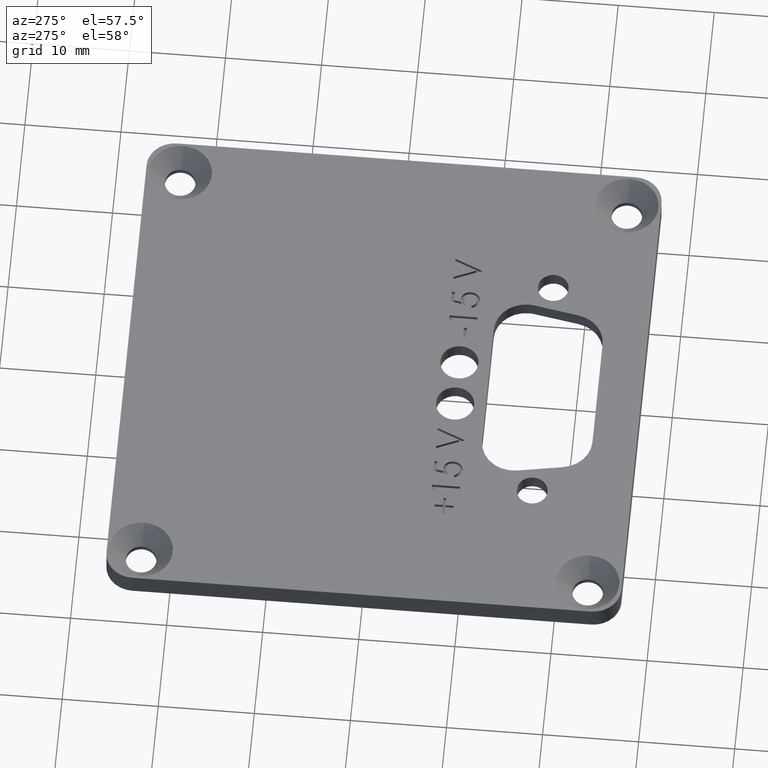
[diagram: clean part render]
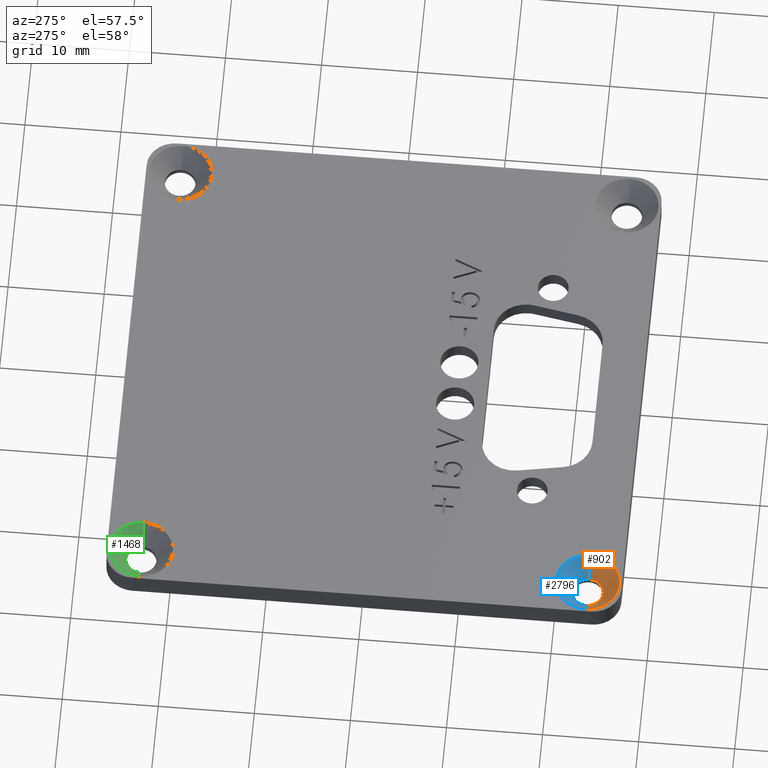
[diagram: same view with three faces highlighted in distinct colors, each labeled with its STEP entity id]
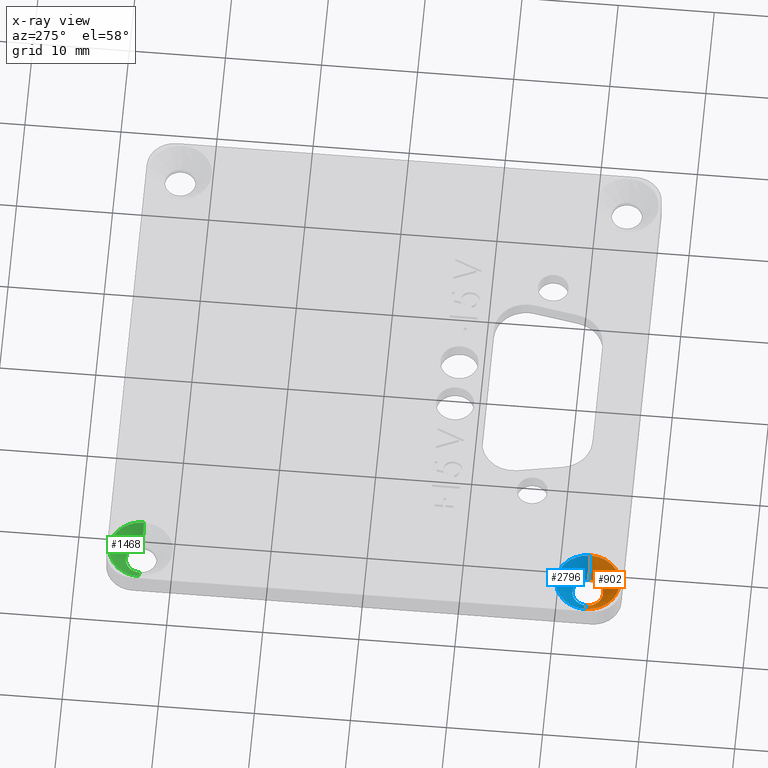
[diagram: x-ray of the same camera — body ghosted, the three highlighted faces saturated]
A machine part, auxiliary view with three faces highlighted in distinct colors.
The next image is the same camera in x-ray (body ghosted, the three faces saturated) — at least one of them is partly hidden behind the body in this view.
Their STEP definitions:

[orange] entity #902 — the highlighted conical surface has half-angle 41 deg.
#76 = EDGE_CURVE ( 'NONE', #2700, #6438, #6352, .T. ) ;
#322 = DIRECTION ( 'NONE',  ( 1.000000000000000000, 0.0000000000000000000, 0.0000000000000000000 ) ) ;
#371 = LINE ( 'NONE', #2933, #2832 ) ;
#525 = ORIENTED_EDGE ( 'NONE', *, *, #4671, .F. ) ;
#820 = EDGE_CURVE ( 'NONE', #2700, #1580, #6354, .T. ) ;
#894 = CARTESIAN_POINT ( 'NONE',  ( -1.045000000000000200, -0.9150000000000002600, 0.04921259842519685300 ) ) ;
#902 = ADVANCED_FACE ( 'NONE', ( #1443 ), #5883, .F. ) ;
#1054 = DIRECTION ( 'NONE',  ( -0.6560590289905072800, 8.034405899049453800E-017, 0.7547095802227720100 ) ) ;
#1059 = CIRCLE ( 'NONE', #1637, 0.1299999999999999800 ) ;
#1078 = VECTOR ( 'NONE', #1054, 39.37007874015748100 ) ;
#1443 = FACE_OUTER_BOUND ( 'NONE', #1845, .T. ) ;
#1580 = VERTEX_POINT ( 'NONE', #3117 ) ;
#1637 = AXIS2_PLACEMENT_3D ( 'NONE', #6267, #3282, #322 ) ;
#1845 = EDGE_LOOP ( 'NONE', ( #5826, #2280, #4849, #525 ) ) ;
#2008 = CARTESIAN_POINT ( 'NONE',  ( -0.9780000000000002000, -0.9150000000000002600, -0.02786208485861078900 ) ) ;
#2012 = DIRECTION ( 'NONE',  ( 0.0000000000000000000, 0.0000000000000000000, 1.000000000000000000 ) ) ;
#2280 = ORIENTED_EDGE ( 'NONE', *, *, #820, .T. ) ;
#2477 = CARTESIAN_POINT ( 'NONE',  ( -0.9150000000000002600, -0.9150000000000002600, -0.02786208485861078900 ) ) ;
#2680 = VERTEX_POINT ( 'NONE', #5497 ) ;
#2700 = VERTEX_POINT ( 'NONE', #2008 ) ;
#2832 = VECTOR ( 'NONE', #3441, 39.37007874015748100 ) ;
#2933 = CARTESIAN_POINT ( 'NONE',  ( -0.7850000000000002500, -0.9150000000000002600, 0.04921259842519685300 ) ) ;
#3117 = CARTESIAN_POINT ( 'NONE',  ( -1.045000000000000200, -0.9150000000000002600, 0.04921259842519685300 ) ) ;
#3267 = AXIS2_PLACEMENT_3D ( 'NONE', #2477, #2012, #4474 ) ;
#3282 = DIRECTION ( 'NONE',  ( 0.0000000000000000000, 0.0000000000000000000, 1.000000000000000000 ) ) ;
#3441 = DIRECTION ( 'NONE',  ( 0.6560590289905072800, 0.0000000000000000000, 0.7547095802227720100 ) ) ;
#4282 = DIRECTION ( 'NONE',  ( 1.000000000000000000, 0.0000000000000000000, 0.0000000000000000000 ) ) ;
#4292 = CARTESIAN_POINT ( 'NONE',  ( -0.9150000000000002600, -0.9150000000000002600, 0.04921259842519685300 ) ) ;
#4474 = DIRECTION ( 'NONE',  ( 1.000000000000000000, 0.0000000000000000000, 0.0000000000000000000 ) ) ;
#4671 = EDGE_CURVE ( 'NONE', #6438, #2680, #371, .T. ) ;
#4849 = ORIENTED_EDGE ( 'NONE', *, *, #4982, .T. ) ;
#4982 = EDGE_CURVE ( 'NONE', #1580, #2680, #1059, .T. ) ;
#5497 = CARTESIAN_POINT ( 'NONE',  ( -0.7850000000000002500, -0.9150000000000002600, 0.04921259842519685300 ) ) ;
#5826 = ORIENTED_EDGE ( 'NONE', *, *, #76, .F. ) ;
#5883 = CONICAL_SURFACE ( 'NONE', #6445, 0.1299999999999999800, 0.7155849933176751100 ) ;
#6186 = CARTESIAN_POINT ( 'NONE',  ( -0.8520000000000002000, -0.9150000000000002600, -0.02786208485861078900 ) ) ;
#6267 = CARTESIAN_POINT ( 'NONE',  ( -0.9150000000000002600, -0.9150000000000002600, 0.04921259842519685300 ) ) ;
#6271 = DIRECTION ( 'NONE',  ( 0.0000000000000000000, 0.0000000000000000000, 1.000000000000000000 ) ) ;
#6352 = CIRCLE ( 'NONE', #3267, 0.06299999999999998700 ) ;
#6354 = LINE ( 'NONE', #894, #1078 ) ;
#6438 = VERTEX_POINT ( 'NONE', #6186 ) ;
#6445 = AXIS2_PLACEMENT_3D ( 'NONE', #4292, #6271, #4282 ) ;

[blue] entity #2796 — the highlighted conical surface has half-angle 41 deg.
#98 = ORIENTED_EDGE ( 'NONE', *, *, #4671, .T. ) ;
#371 = LINE ( 'NONE', #2933, #2832 ) ;
#820 = EDGE_CURVE ( 'NONE', #2700, #1580, #6354, .T. ) ;
#894 = CARTESIAN_POINT ( 'NONE',  ( -1.045000000000000200, -0.9150000000000002600, 0.04921259842519685300 ) ) ;
#1054 = DIRECTION ( 'NONE',  ( -0.6560590289905072800, 8.034405899049453800E-017, 0.7547095802227720100 ) ) ;
#1078 = VECTOR ( 'NONE', #1054, 39.37007874015748100 ) ;
#1557 = EDGE_CURVE ( 'NONE', #6438, #2700, #5629, .T. ) ;
#1580 = VERTEX_POINT ( 'NONE', #3117 ) ;
#1718 = AXIS2_PLACEMENT_3D ( 'NONE', #2610, #6104, #3135 ) ;
#1952 = AXIS2_PLACEMENT_3D ( 'NONE', #1996, #3094, #3002 ) ;
#1996 = CARTESIAN_POINT ( 'NONE',  ( -0.9150000000000002600, -0.9150000000000002600, -0.02786208485861078900 ) ) ;
#1999 = ORIENTED_EDGE ( 'NONE', *, *, #5450, .T. ) ;
#2002 = AXIS2_PLACEMENT_3D ( 'NONE', #2950, #4288, #3393 ) ;
#2008 = CARTESIAN_POINT ( 'NONE',  ( -0.9780000000000002000, -0.9150000000000002600, -0.02786208485861078900 ) ) ;
#2467 = ORIENTED_EDGE ( 'NONE', *, *, #820, .F. ) ;
#2610 = CARTESIAN_POINT ( 'NONE',  ( -0.9150000000000002600, -0.9150000000000002600, 0.04921259842519685300 ) ) ;
#2680 = VERTEX_POINT ( 'NONE', #5497 ) ;
#2700 = VERTEX_POINT ( 'NONE', #2008 ) ;
#2796 = ADVANCED_FACE ( 'NONE', ( #3655 ), #4811, .F. ) ;
#2832 = VECTOR ( 'NONE', #3441, 39.37007874015748100 ) ;
#2933 = CARTESIAN_POINT ( 'NONE',  ( -0.7850000000000002500, -0.9150000000000002600, 0.04921259842519685300 ) ) ;
#2950 = CARTESIAN_POINT ( 'NONE',  ( -0.9150000000000002600, -0.9150000000000002600, 0.04921259842519685300 ) ) ;
#2979 = ORIENTED_EDGE ( 'NONE', *, *, #1557, .F. ) ;
#3002 = DIRECTION ( 'NONE',  ( 1.000000000000000000, 0.0000000000000000000, 0.0000000000000000000 ) ) ;
#3094 = DIRECTION ( 'NONE',  ( 0.0000000000000000000, 0.0000000000000000000, 1.000000000000000000 ) ) ;
#3117 = CARTESIAN_POINT ( 'NONE',  ( -1.045000000000000200, -0.9150000000000002600, 0.04921259842519685300 ) ) ;
#3135 = DIRECTION ( 'NONE',  ( 1.000000000000000000, 0.0000000000000000000, 0.0000000000000000000 ) ) ;
#3393 = DIRECTION ( 'NONE',  ( 1.000000000000000000, 0.0000000000000000000, 0.0000000000000000000 ) ) ;
#3441 = DIRECTION ( 'NONE',  ( 0.6560590289905072800, 0.0000000000000000000, 0.7547095802227720100 ) ) ;
#3655 = FACE_OUTER_BOUND ( 'NONE', #6122, .T. ) ;
#4288 = DIRECTION ( 'NONE',  ( 0.0000000000000000000, 0.0000000000000000000, 1.000000000000000000 ) ) ;
#4671 = EDGE_CURVE ( 'NONE', #6438, #2680, #371, .T. ) ;
#4811 = CONICAL_SURFACE ( 'NONE', #2002, 0.1299999999999999800, 0.7155849933176751100 ) ;
#5450 = EDGE_CURVE ( 'NONE', #2680, #1580, #5925, .T. ) ;
#5497 = CARTESIAN_POINT ( 'NONE',  ( -0.7850000000000002500, -0.9150000000000002600, 0.04921259842519685300 ) ) ;
#5629 = CIRCLE ( 'NONE', #1952, 0.06299999999999998700 ) ;
#5925 = CIRCLE ( 'NONE', #1718, 0.1299999999999999800 ) ;
#6104 = DIRECTION ( 'NONE',  ( 0.0000000000000000000, 0.0000000000000000000, 1.000000000000000000 ) ) ;
#6122 = EDGE_LOOP ( 'NONE', ( #2467, #2979, #98, #1999 ) ) ;
#6186 = CARTESIAN_POINT ( 'NONE',  ( -0.8520000000000002000, -0.9150000000000002600, -0.02786208485861078900 ) ) ;
#6354 = LINE ( 'NONE', #894, #1078 ) ;
#6438 = VERTEX_POINT ( 'NONE', #6186 ) ;

[green] entity #1468 — the highlighted conical surface has half-angle 41 deg.
#287 = ORIENTED_EDGE ( 'NONE', *, *, #1455, .T. ) ;
#383 = DIRECTION ( 'NONE',  ( 0.0000000000000000000, 0.0000000000000000000, 1.000000000000000000 ) ) ;
#692 = LINE ( 'NONE', #5343, #5797 ) ;
#698 = CARTESIAN_POINT ( 'NONE',  ( -0.9780000000000002000, 0.9149999999999999200, -0.02786208485861078900 ) ) ;
#806 = DIRECTION ( 'NONE',  ( 1.000000000000000000, 0.0000000000000000000, 0.0000000000000000000 ) ) ;
#854 = CIRCLE ( 'NONE', #5569, 0.06299999999999998700 ) ;
#1147 = CONICAL_SURFACE ( 'NONE', #5725, 0.1299999999999999800, 0.7155849933176751100 ) ;
#1288 = FACE_OUTER_BOUND ( 'NONE', #3425, .T. ) ;
#1455 = EDGE_CURVE ( 'NONE', #3239, #5695, #5235, .T. ) ;
#1462 = EDGE_CURVE ( 'NONE', #4317, #5695, #2748, .T. ) ;
#1468 = ADVANCED_FACE ( 'NONE', ( #1288 ), #1147, .F. ) ;
#1566 = ORIENTED_EDGE ( 'NONE', *, *, #1462, .F. ) ;
#1875 = CARTESIAN_POINT ( 'NONE',  ( -0.9150000000000002600, 0.9149999999999999200, -0.02786208485861078900 ) ) ;
#2007 = CARTESIAN_POINT ( 'NONE',  ( -1.045000000000000200, 0.9149999999999999200, 0.04921259842519685300 ) ) ;
#2020 = CARTESIAN_POINT ( 'NONE',  ( -0.9150000000000002600, 0.9149999999999999200, 0.04921259842519685300 ) ) ;
#2356 = CARTESIAN_POINT ( 'NONE',  ( -0.9150000000000002600, 0.9149999999999999200, 0.04921259842519685300 ) ) ;
#2590 = VECTOR ( 'NONE', #4050, 39.37007874015748100 ) ;
#2748 = LINE ( 'NONE', #2007, #2590 ) ;
#3239 = VERTEX_POINT ( 'NONE', #5594 ) ;
#3425 = EDGE_LOOP ( 'NONE', ( #1566, #4465, #4211, #287 ) ) ;
#4035 = CARTESIAN_POINT ( 'NONE',  ( -1.045000000000000200, 0.9149999999999999200, 0.04921259842519685300 ) ) ;
#4050 = DIRECTION ( 'NONE',  ( -0.6560590289905072800, 8.034405899049453800E-017, 0.7547095802227720100 ) ) ;
#4135 = EDGE_CURVE ( 'NONE', #4540, #4317, #854, .T. ) ;
#4169 = EDGE_CURVE ( 'NONE', #4540, #3239, #692, .T. ) ;
#4211 = ORIENTED_EDGE ( 'NONE', *, *, #4169, .T. ) ;
#4229 = DIRECTION ( 'NONE',  ( 0.0000000000000000000, 0.0000000000000000000, 1.000000000000000000 ) ) ;
#4317 = VERTEX_POINT ( 'NONE', #698 ) ;
#4465 = ORIENTED_EDGE ( 'NONE', *, *, #4135, .F. ) ;
#4540 = VERTEX_POINT ( 'NONE', #6252 ) ;
#4819 = DIRECTION ( 'NONE',  ( 1.000000000000000000, 0.0000000000000000000, 0.0000000000000000000 ) ) ;
#5118 = DIRECTION ( 'NONE',  ( 1.000000000000000000, 0.0000000000000000000, 0.0000000000000000000 ) ) ;
#5235 = CIRCLE ( 'NONE', #5384, 0.1299999999999999800 ) ;
#5238 = DIRECTION ( 'NONE',  ( 0.6560590289905072800, 0.0000000000000000000, 0.7547095802227720100 ) ) ;
#5343 = CARTESIAN_POINT ( 'NONE',  ( -0.7850000000000002500, 0.9149999999999999200, 0.04921259842519685300 ) ) ;
#5384 = AXIS2_PLACEMENT_3D ( 'NONE', #2356, #4229, #806 ) ;
#5543 = DIRECTION ( 'NONE',  ( 0.0000000000000000000, 0.0000000000000000000, 1.000000000000000000 ) ) ;
#5569 = AXIS2_PLACEMENT_3D ( 'NONE', #1875, #383, #4819 ) ;
#5594 = CARTESIAN_POINT ( 'NONE',  ( -0.7850000000000002500, 0.9149999999999999200, 0.04921259842519685300 ) ) ;
#5695 = VERTEX_POINT ( 'NONE', #4035 ) ;
#5725 = AXIS2_PLACEMENT_3D ( 'NONE', #2020, #5543, #5118 ) ;
#5797 = VECTOR ( 'NONE', #5238, 39.37007874015748100 ) ;
#6252 = CARTESIAN_POINT ( 'NONE',  ( -0.8520000000000002000, 0.9149999999999999200, -0.02786208485861078900 ) ) ;